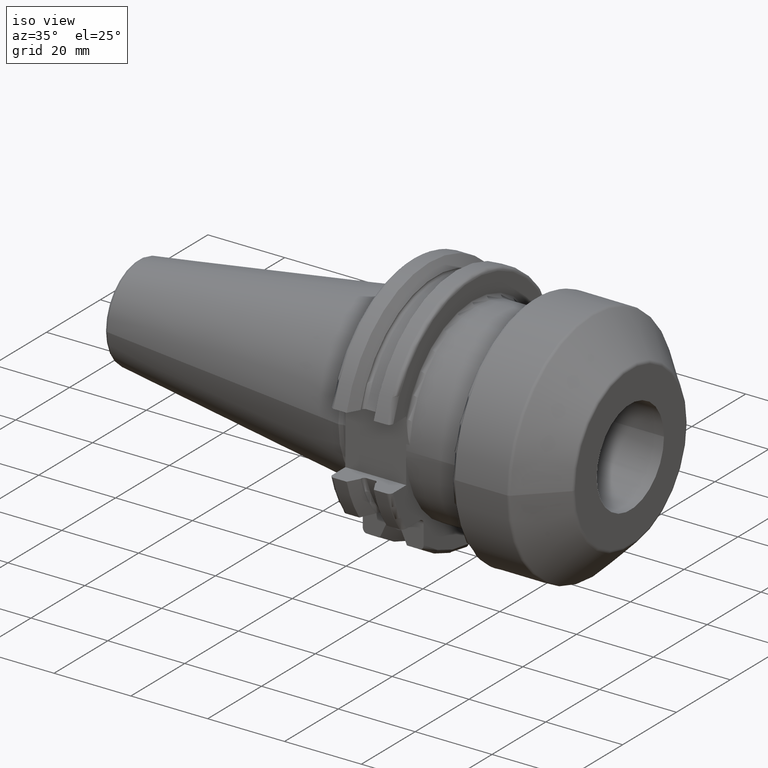
[diagram: clean part render]
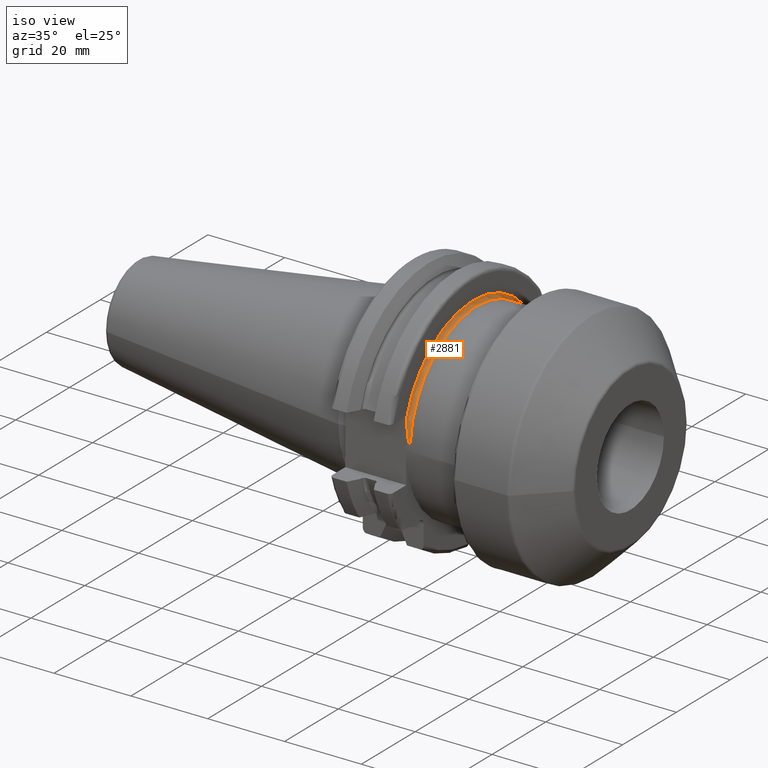
[diagram: same view with one face highlighted and labeled with its STEP entity id]
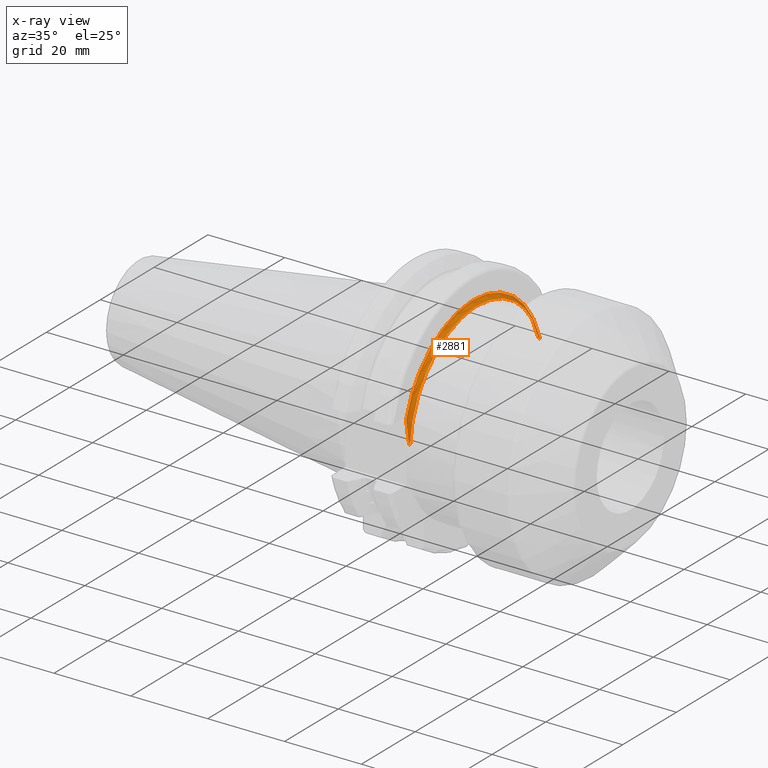
[diagram: x-ray of the same camera — body ghosted, the highlighted face saturated]
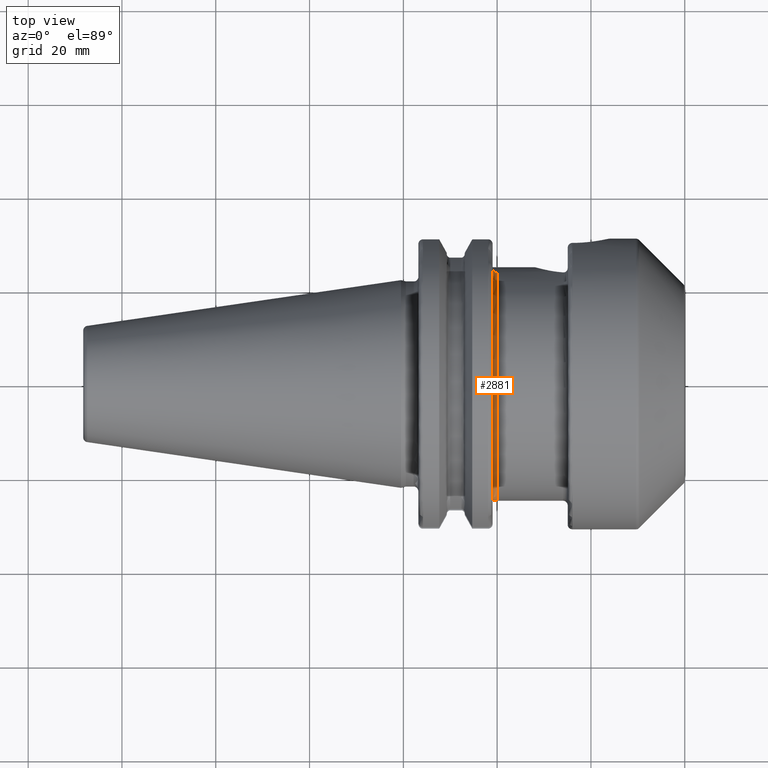
[diagram: same view with one face highlighted and labeled with its STEP entity id]
A machine part, iso view. The second image highlights one B-rep face of the part: STEP entity #2881.
The next image is the same camera in x-ray: the body ghosted, the highlighted face saturated — about 4% of this face is hidden behind the body in this view.
A second angle (top view) of the same face is appended — the face is thin or edge-on in the first view.
In plain terms, the highlighted toroidal blend (fillet) surface has major radius 25.9 mm and minor (blend) radius 1 mm.
Its self-contained STEP definition (entity closure, byte-faithful):
#950=CARTESIAN_POINT('',(2.005E1,0.E0,0.E0));
#951=DIRECTION('',(1.E0,0.E0,0.E0));
#952=DIRECTION('',(0.E0,9.456104515831E-1,3.253012048193E-1));
#953=AXIS2_PLACEMENT_3D('',#950,#951,#952);
#955=CARTESIAN_POINT('',(2.005E1,-2.485E1,1.577181029559E0));
#956=CARTESIAN_POINT('',(2.003701808416E1,-2.485E1,1.577181029559E0));
#957=CARTESIAN_POINT('',(2.001249744280E1,-2.485E1,1.585082438291E0));
#958=CARTESIAN_POINT('',(1.997941402338E1,-2.485E1,1.613772857986E0));
#959=CARTESIAN_POINT('',(1.995104281261E1,-2.485E1,1.651209909140E0));
#960=CARTESIAN_POINT('',(1.992515596964E1,-2.485E1,1.694853227646E0));
#961=CARTESIAN_POINT('',(1.990063258478E1,-2.485E1,1.744206857901E0));
#962=CARTESIAN_POINT('',(1.987708332714E1,-2.485E1,1.798401509042E0));
#963=CARTESIAN_POINT('',(1.985394920354E1,-2.485E1,1.857663153032E0));
#964=CARTESIAN_POINT('',(1.983105727339E1,-2.485E1,1.921758421302E0));
#965=CARTESIAN_POINT('',(1.980825738756E1,-2.485E1,1.990572760571E0));
#966=CARTESIAN_POINT('',(1.978545808058E1,-2.485E1,2.063977172565E0));
#967=CARTESIAN_POINT('',(1.976259655697E1,-2.485E1,2.141849970353E0));
#968=CARTESIAN_POINT('',(1.973967605170E1,-2.485E1,2.223905842367E0));
#969=CARTESIAN_POINT('',(1.971664338631E1,-2.485E1,2.310098923233E0));
#970=CARTESIAN_POINT('',(1.969331409348E1,-2.485E1,2.400975357967E0));
#971=CARTESIAN_POINT('',(1.966951593391E1,-2.485E1,2.497174032209E0));
#972=CARTESIAN_POINT('',(1.964511473126E1,-2.485E1,2.599292223042E0));
#973=CARTESIAN_POINT('',(1.961999421396E1,-2.485E1,2.707947091844E0));
#974=CARTESIAN_POINT('',(1.959405828380E1,-2.485E1,2.823757818503E0));
#975=CARTESIAN_POINT('',(1.956722916647E1,-2.485E1,2.947349160391E0));
#976=CARTESIAN_POINT('',(1.953944814584E1,-2.485E1,3.079349261912E0));
#977=CARTESIAN_POINT('',(1.951067686734E1,-2.485E1,3.220388945310E0));
#978=CARTESIAN_POINT('',(1.948089977824E1,-2.485E1,3.371099825880E0));
#979=CARTESIAN_POINT('',(1.945012715494E1,-2.485E1,3.532114049613E0));
#980=CARTESIAN_POINT('',(1.941840036735E1,-2.485E1,3.704056916025E0));
#981=CARTESIAN_POINT('',(1.938579356035E1,-2.485E1,3.887564894737E0));
#982=CARTESIAN_POINT('',(1.935243549231E1,-2.485E1,4.083199072438E0));
#983=CARTESIAN_POINT('',(1.931848421596E1,-2.485E1,4.291613118244E0));
#984=CARTESIAN_POINT('',(1.928388082673E1,-2.485E1,4.515271617518E0));
#985=CARTESIAN_POINT('',(1.924850457060E1,-2.485E1,4.758096461307E0));
#986=CARTESIAN_POINT('',(1.921253215272E1,-2.485E1,5.023557974254E0));
#987=CARTESIAN_POINT('',(1.917640970804E1,-2.485E1,5.315254450747E0));
#988=CARTESIAN_POINT('',(1.914097538256E1,-2.485E1,5.636767634167E0));
#989=CARTESIAN_POINT('',(1.910759580070E1,-2.485E1,5.991654684021E0));
#990=CARTESIAN_POINT('',(1.907837820445E1,-2.485E1,6.383564123075E0));
#991=CARTESIAN_POINT('',(1.905650526812E1,-2.485E1,6.815673811023E0));
#992=CARTESIAN_POINT('',(1.905E1,-2.485E1,7.133632061082E0));
#993=CARTESIAN_POINT('',(1.905E1,-2.485E1,7.299828765115E0));
#995=CARTESIAN_POINT('',(1.905E1,0.E0,0.E0));
#996=DIRECTION('',(-1.E0,0.E0,0.E0));
#997=DIRECTION('',(0.E0,-9.594594594595E-1,2.818466704678E-1));
#998=AXIS2_PLACEMENT_3D('',#995,#996,#997);
#1000=CARTESIAN_POINT('',(1.905E1,2.460081299470E1,8.1E0));
#1001=CARTESIAN_POINT('',(1.905E1,2.450570740103E1,8.1E0));
#1002=CARTESIAN_POINT('',(1.907319021464E1,2.432284797970E1,8.1E0));
#1003=CARTESIAN_POINT('',(1.917917542749E1,2.405750980241E1,8.1E0));
#1004=CARTESIAN_POINT('',(1.934147113549E1,2.384042100113E1,8.1E0));
#1005=CARTESIAN_POINT('',(1.954931739289E1,2.367341370308E1,8.1E0));
#1006=CARTESIAN_POINT('',(1.979823646777E1,2.356756183238E1,8.1E0));
#1007=CARTESIAN_POINT('',(1.996451949878E1,2.354570024442E1,8.1E0));
#1008=CARTESIAN_POINT('',(2.005E1,2.354570024442E1,8.1E0));
#1782=CARTESIAN_POINT('',(1.905E1,2.460081299470E1,8.1E0));
#1783=VERTEX_POINT('',#1782);
#1784=VERTEX_POINT('',#955);
#1785=VERTEX_POINT('',#993);
#1790=CARTESIAN_POINT('',(2.005E1,2.354570024442E1,8.1E0));
#1791=VERTEX_POINT('',#1790);
#2870=CARTESIAN_POINT('',(2.005E1,0.E0,0.E0));
#2871=DIRECTION('',(1.E0,0.E0,0.E0));
#2872=DIRECTION('',(0.E0,1.485959642860E-3,-9.999988959614E-1));
#2873=AXIS2_PLACEMENT_3D('',#2870,#2871,#2872);
#2874=TOROIDAL_SURFACE('',#2873,2.59E1,1.E0);
#2875=ORIENTED_EDGE('',*,*,#2059,.T.);
#2876=ORIENTED_EDGE('',*,*,#2859,.T.);
#2877=ORIENTED_EDGE('',*,*,#2336,.T.);
#2878=ORIENTED_EDGE('',*,*,#2013,.T.);
#2879=EDGE_LOOP('',(#2875,#2876,#2877,#2878));
#2880=FACE_OUTER_BOUND('',#2879,.F.);
#2881=ADVANCED_FACE('',(#2880),#2874,.F.);
#954=CIRCLE('',#953,2.49E1);
#994=B_SPLINE_CURVE_WITH_KNOTS('',3,(#955,#956,#957,#958,#959,#960,#961,#962,
#963,#964,#965,#966,#967,#968,#969,#970,#971,#972,#973,#974,#975,#976,#977,#978,
#979,#980,#981,#982,#983,#984,#985,#986,#987,#988,#989,#990,#991,#992,#993),
.UNSPECIFIED.,.F.,.F.,(4,1,1,1,1,1,1,1,1,1,1,1,1,1,1,1,1,1,1,1,1,1,1,1,1,1,1,1,
1,1,1,1,1,1,1,1,4),(0.E0,2.777777777778E-2,5.555555555556E-2,8.333333333333E-2,
1.111111111111E-1,1.388888888889E-1,1.666666666667E-1,1.944444444444E-1,
2.222222222222E-1,2.5E-1,2.777777777778E-1,3.055555555556E-1,3.333333333333E-1,
3.611111111111E-1,3.888888888889E-1,4.166666666667E-1,4.444444444444E-1,
4.722222222222E-1,5.E-1,5.277777777778E-1,5.555555555556E-1,5.833333333333E-1,
6.111111111111E-1,6.388888888889E-1,6.666666666667E-1,6.944444444444E-1,
7.222222222222E-1,7.5E-1,7.777777777778E-1,8.055555555556E-1,8.333333333333E-1,
8.611111111111E-1,8.888888888889E-1,9.166666666667E-1,9.444444444444E-1,
9.722222222222E-1,1.E0),.UNSPECIFIED.);
#999=CIRCLE('',#998,2.59E1);
#1009=B_SPLINE_CURVE_WITH_KNOTS('',3,(#1000,#1001,#1002,#1003,#1004,#1005,#1006,
#1007,#1008),.UNSPECIFIED.,.F.,.F.,(4,1,1,1,1,1,4),(0.E0,1.666666666667E-1,
3.333333333333E-1,5.E-1,6.666666666667E-1,8.333333333333E-1,1.E0),
.UNSPECIFIED.);
#2013=EDGE_CURVE('',#1783,#1791,#1009,.T.);
#2059=EDGE_CURVE('',#1791,#1784,#954,.T.);
#2336=EDGE_CURVE('',#1785,#1783,#999,.T.);
#2859=EDGE_CURVE('',#1784,#1785,#994,.T.);